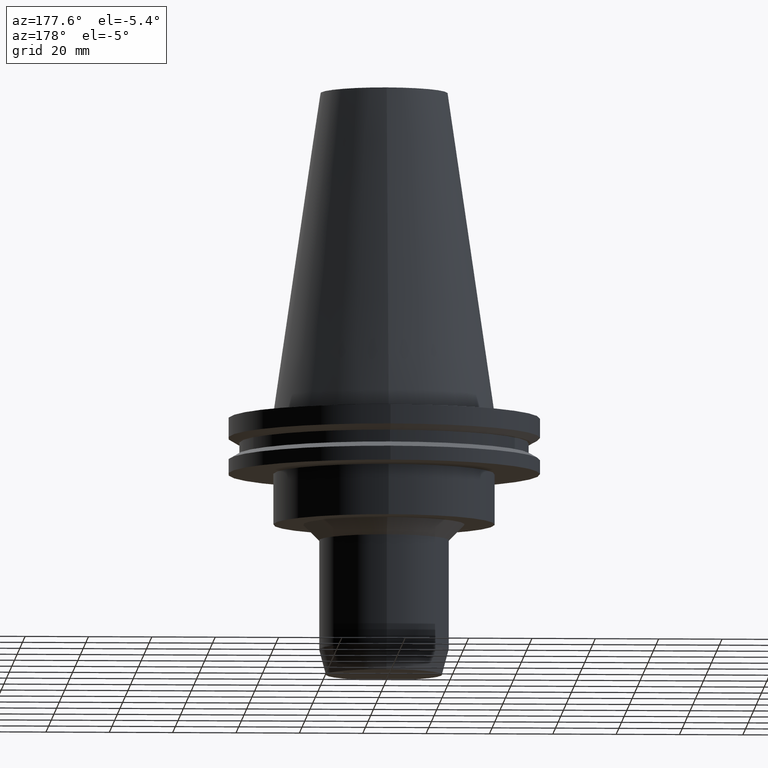
[diagram: clean part render]
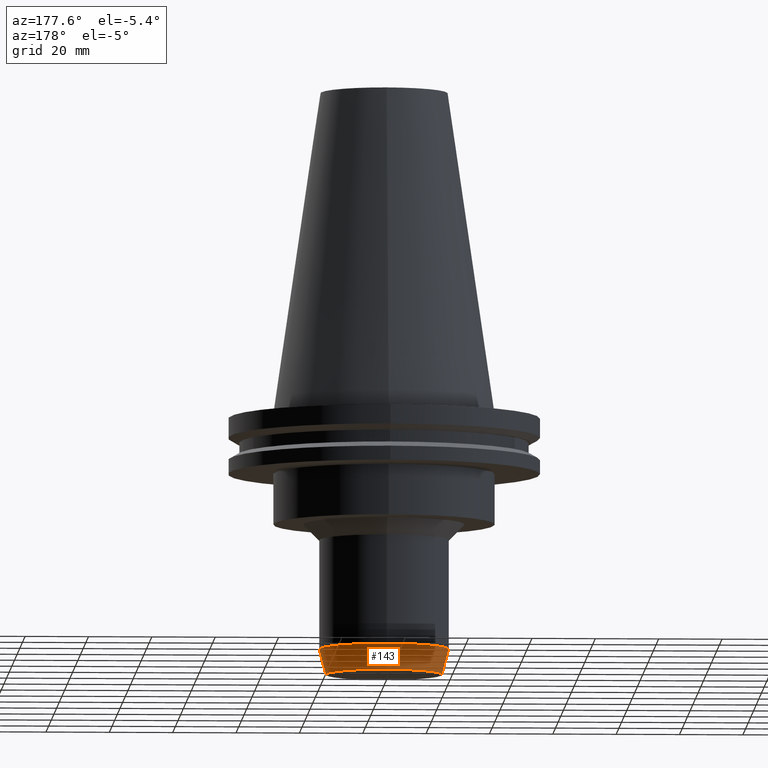
[diagram: same view with one face highlighted and labeled with its STEP entity id]
A machine part, auxiliary view. The second image highlights one B-rep face of the part: STEP entity #143.
In plain terms, the highlighted conical surface has half-angle 15 deg.
Its self-contained STEP definition (entity closure, byte-faithful):
#94=EDGE_CURVE('Unnamed[1]',#220,#220,#221,.T.);
#109=EDGE_CURVE('Unnamed[1]',#243,#243,#244,.T.);
#143=ADVANCED_FACE('Unnamed[1]',(#295,#296),#297,.T.);
#220=VERTEX_POINT('',#383);
#221=CIRCLE('',#384,18.3564064645584);
#243=VERTEX_POINT('',#412);
#244=CIRCLE('',#413,20.5000000000002);
#295=FACE_BOUND('',#476,.T.);
#296=FACE_BOUND('',#477,.T.);
#297=CONICAL_SURFACE('',#478,19.4282032322793,0.261799387022769);
#383=CARTESIAN_POINT('',(5.0547296634807E-015,18.3564064645584,-82.55));
#384=AXIS2_PLACEMENT_3D('',#551,#552,#553);
#412=CARTESIAN_POINT('',(4.56487094321621E-015,20.5000000000003,-74.5499999901106));
#413=AXIS2_PLACEMENT_3D('',#577,#578,#579);
#476=EDGE_LOOP('',(#633));
#477=EDGE_LOOP('',(#634));
#478=AXIS2_PLACEMENT_3D('',#635,#636,#637);
#551=CARTESIAN_POINT('',(5.0547296634807E-015,6.60394629283868E-014,-82.55));
#552=DIRECTION('',(6.12323399573677E-017,7.22462196173126E-016,-1.0));
#553=DIRECTION('',(-4.90652035331923E-032,1.0,7.22462196173125E-016));
#577=CARTESIAN_POINT('',(4.56487094321621E-015,6.02597653518573E-014,-74.5499999901106));
#578=DIRECTION('',(6.12323399573677E-017,7.22462196173134E-016,-1.0));
#579=DIRECTION('',(-4.90652035331935E-032,1.0,7.22462196173134E-016));
#633=ORIENTED_EDGE('',*,*,#94,.F.);
#634=ORIENTED_EDGE('',*,*,#109,.T.);
#635=CARTESIAN_POINT('',(4.80980030334846E-015,6.3149614140122E-014,-78.5499999950553));
#636=DIRECTION('',(-6.12323399573677E-017,-7.22462196173088E-016,1.0));
#637=DIRECTION('',(-4.90652035331883E-032,1.0,7.22462196173088E-016));